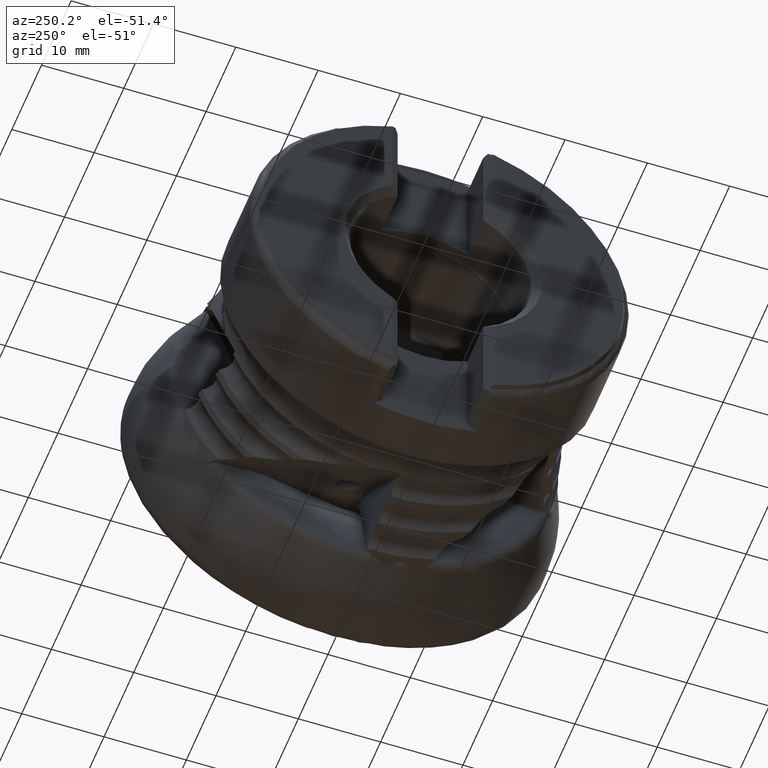
[diagram: clean part render]
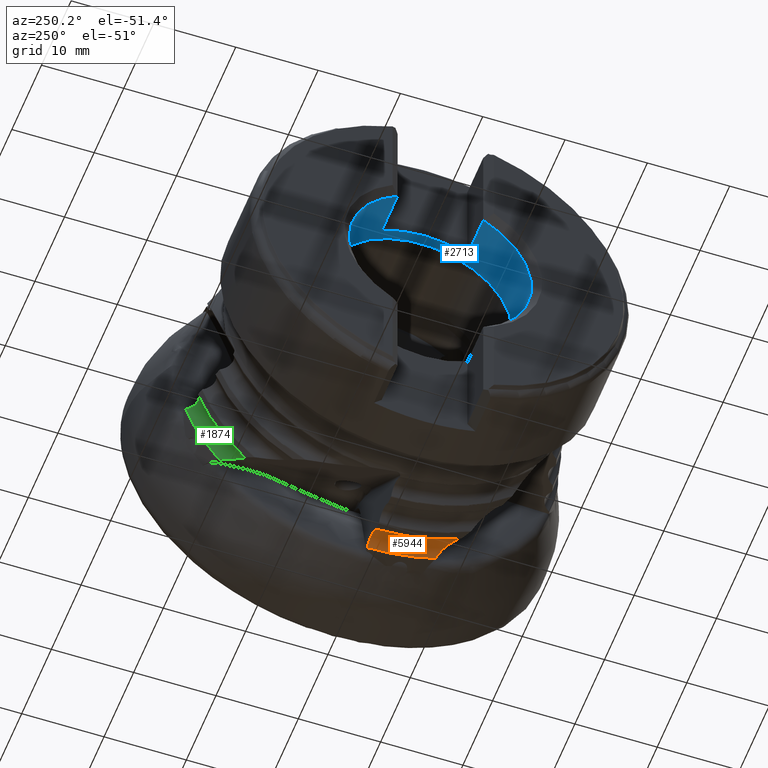
[diagram: same view with three faces highlighted in distinct colors, each labeled with its STEP entity id]
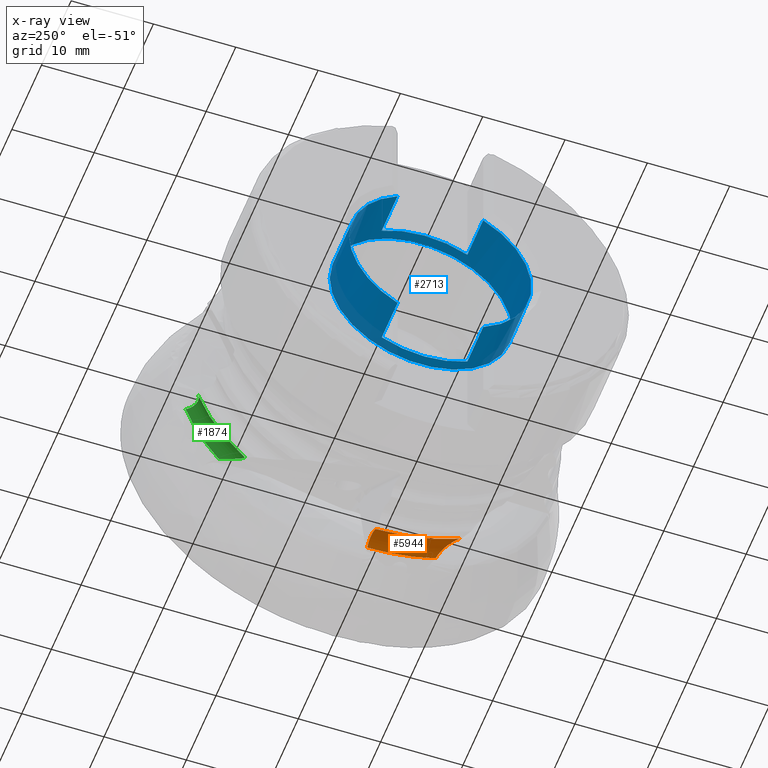
[diagram: x-ray of the same camera — body ghosted, the three highlighted faces saturated]
A machine part, auxiliary view with three faces highlighted in distinct colors.
The next image is the same camera in x-ray (body ghosted, the three faces saturated) — at least one of them is partly hidden behind the body in this view.
Their STEP definitions:

[orange] entity #5944 — the highlighted toroidal blend (fillet) surface has major radius 23.6864 mm and minor (blend) radius 1.5 mm.
#90 = CARTESIAN_POINT ( 'NONE',  ( -14.88469170939413800, -9.933350203668451800, -19.85538768310722800 ) ) ;
#259 = EDGE_CURVE ( 'NONE', #7449, #995, #10432, .T. ) ;
#612 = EDGE_LOOP ( 'NONE', ( #6587, #9050, #5675, #4384, #12652 ) ) ;
#614 = CARTESIAN_POINT ( 'NONE',  ( -13.78147778570779500, -0.08154593511307355000, -22.42667413880943900 ) ) ;
#676 = VERTEX_POINT ( 'NONE', #12670 ) ;
#915 = DIRECTION ( 'NONE',  ( 1.000000000000000000, -0.0000000000000000000, -0.0000000000000000000 ) ) ;
#995 = VERTEX_POINT ( 'NONE', #11665 ) ;
#1133 = CARTESIAN_POINT ( 'NONE',  ( -15.24039740418544000, -10.24172280577937700, -19.83586914992195500 ) ) ;
#1351 = CARTESIAN_POINT ( 'NONE',  ( -13.51307249743097200, -8.664374458453057300, -20.92385095008895500 ) ) ;
#1650 = CARTESIAN_POINT ( 'NONE',  ( -13.41097688014077400, -0.05563798796459137900, -22.74632232712764300 ) ) ;
#1803 = EDGE_CURVE ( 'NONE', #2507, #676, #10298, .T. ) ;
#2160 = VERTEX_POINT ( 'NONE', #7013 ) ;
#2174 = CARTESIAN_POINT ( 'NONE',  ( -15.51131119843471700, -10.45827192814917000, -19.90559551377851100 ) ) ;
#2395 = CARTESIAN_POINT ( 'NONE',  ( -13.86612882969662900, -8.985439915786688700, -20.48961213556946600 ) ) ;
#2507 = VERTEX_POINT ( 'NONE', #6790 ) ;
#2656 = CARTESIAN_POINT ( 'NONE',  ( -15.40434619505159700, -0.1950279491822991000, -22.41049312331525200 ) ) ;
#2714 = CARTESIAN_POINT ( 'NONE',  ( -13.18990953633444400, -0.04017945338739426600, -23.18883366109630700 ) ) ;
#2951 = CARTESIAN_POINT ( 'NONE',  ( -13.18990953633444400, -0.04017945338739426600, -23.18883366109630700 ) ) ;
#3159 = DIRECTION ( 'NONE',  ( 1.000000000000000000, -0.0000000000000000000, -0.0000000000000000000 ) ) ;
#3427 = CARTESIAN_POINT ( 'NONE',  ( -13.18990953633467800, -8.323900030351369500, -21.64338950430738600 ) ) ;
#3479 = CARTESIAN_POINT ( 'NONE',  ( -14.27372761121889300, -9.355758849266262400, -20.15095123701895800 ) ) ;
#3608 = EDGE_CURVE ( 'NONE', #2160, #7449, #11939, .T. ) ;
#3753 = CARTESIAN_POINT ( 'NONE',  ( -15.07131665386254400, -0.1717402550839444400, -22.25493915660329600 ) ) ;
#4384 = ORIENTED_EDGE ( 'NONE', *, *, #3608, .T. ) ;
#4488 = CARTESIAN_POINT ( 'NONE',  ( -13.24534631918984400, -8.396501643351065500, -21.44655030831243500 ) ) ;
#4541 = CARTESIAN_POINT ( 'NONE',  ( -14.56182803034311000, -9.628355286701559400, -19.98900914385499700 ) ) ;
#4792 = CARTESIAN_POINT ( 'NONE',  ( -14.71191873162256600, -0.1466087041625865600, -22.18478892596700900 ) ) ;
#5675 = ORIENTED_EDGE ( 'NONE', *, *, #6962, .T. ) ;
#5847 = CARTESIAN_POINT ( 'NONE',  ( -14.34697165649062000, -0.1210891186705060200, -22.20339248542989800 ) ) ;
#5944 = ADVANCED_FACE ( 'NONE', ( #12919 ), #13273, .F. ) ;
#6289 = CARTESIAN_POINT ( 'NONE',  ( -14.60497898970496100, 0.0000000000000000000, 0.0000000000000000000 ) ) ;
#6587 = ORIENTED_EDGE ( 'NONE', *, *, #12567, .T. ) ;
#6790 = CARTESIAN_POINT ( 'NONE',  ( -14.56182803034311000, -9.628355286701559400, -19.98900914385499700 ) ) ;
#6922 = CARTESIAN_POINT ( 'NONE',  ( -13.99519951306806000, -0.09649081415043492300, -22.31038281436774200 ) ) ;
#6962 = EDGE_CURVE ( 'NONE', #676, #2160, #11984, .T. ) ;
#7013 = CARTESIAN_POINT ( 'NONE',  ( -15.59741707130248600, -0.2085287800376602300, -22.56072550622018700 ) ) ;
#7150 = AXIS2_PLACEMENT_3D ( 'NONE', #6289, #3159, #10653 ) ;
#7251 = CARTESIAN_POINT ( 'NONE',  ( -15.59741707130249100, 0.0000000000000000000, 0.0000000000000000000 ) ) ;
#7261 = B_SPLINE_CURVE_WITH_KNOTS ( 'NONE', 3,
 ( #3427, #4488, #7716, #1351, #8820, #2395, #9914, #3479, #10954, #4541 ),
 .UNSPECIFIED., .F., .F.,
 ( 4, 2, 2, 2, 4 ),
 ( 7.752230967857882700E-007, 0.0006450914432543967100, 0.001289407663412007600, 0.001933723883569618600, 0.002578040103727229700 ),
 .UNSPECIFIED. ) ;
#7449 = VERTEX_POINT ( 'NONE', #2951 ) ;
#7479 = CARTESIAN_POINT ( 'NONE',  ( -15.15047835104717900, -10.16552589400645200, -19.83268900366148200 ) ) ;
#7716 = CARTESIAN_POINT ( 'NONE',  ( -13.32326727438856100, -8.479067684438554400, -21.26421689623993000 ) ) ;
#8042 = CARTESIAN_POINT ( 'NONE',  ( -13.68011743834944100, -0.07445812916481801800, -22.49910903494398400 ) ) ;
#8349 = DIRECTION ( 'NONE',  ( 0.0000000000000000000, 0.0000000000000000000, -1.000000000000000000 ) ) ;
#8590 = CARTESIAN_POINT ( 'NONE',  ( -15.42051139532144600, -10.38788773409242200, -19.87208912387053400 ) ) ;
#8693 = DIRECTION ( 'NONE',  ( 0.0000000000000000000, 0.0000000000000000000, 1.000000000000000000 ) ) ;
#8707 = DIRECTION ( 'NONE',  ( -1.000000000000000000, 0.0000000000000000000, 0.0000000000000000000 ) ) ;
#8727 = CARTESIAN_POINT ( 'NONE',  ( -13.18990953633434600, 0.0000000000000000000, 0.0000000000000000000 ) ) ;
#8820 = CARTESIAN_POINT ( 'NONE',  ( -13.62420163658456400, -8.766251063148647700, -20.76815903889483300 ) ) ;
#9050 = ORIENTED_EDGE ( 'NONE', *, *, #1803, .T. ) ;
#9139 = CARTESIAN_POINT ( 'NONE',  ( -13.27185459420402900, -0.04590961003874145800, -22.95577606446703500 ) ) ;
#9642 = CARTESIAN_POINT ( 'NONE',  ( -14.56182803034311000, -9.628355286701559400, -19.98900914385499700 ) ) ;
#9684 = CARTESIAN_POINT ( 'NONE',  ( -15.59741707130238300, -10.52039145622314500, -19.95873701482490500 ) ) ;
#9914 = CARTESIAN_POINT ( 'NONE',  ( -13.99896747420032700, -9.104607525114431600, -20.36468677158382700 ) ) ;
#10170 = CARTESIAN_POINT ( 'NONE',  ( -15.18789958199940700, -0.1798925275755927400, -22.29824666243977300 ) ) ;
#10254 = AXIS2_PLACEMENT_3D ( 'NONE', #7251, #915, #8349 ) ;
#10298 = B_SPLINE_CURVE_WITH_KNOTS ( 'NONE', 3,
 ( #9642, #11741, #90, #7479, #1133, #8590, #2174, #9684 ),
 .UNSPECIFIED., .F., .F.,
 ( 4, 2, 2, 4 ),
 ( 0.0002198754610765449400, 0.0009148930533316950300, 0.001262401849459273800, 0.001609910645586852600 ),
 .UNSPECIFIED. ) ;
#10432 = CIRCLE ( 'NONE', #13711, 23.18886847067933100 ) ;
#10653 = DIRECTION ( 'NONE',  ( 0.0000000000000000000, 0.0000000000000000000, -1.000000000000000000 ) ) ;
#10954 = CARTESIAN_POINT ( 'NONE',  ( -14.41596967887515200, -9.487992046374721200, -20.06127893597356100 ) ) ;
#11163 = CARTESIAN_POINT ( 'NONE',  ( -15.59741707130248600, -0.2085287800376602300, -22.56072550622018700 ) ) ;
#11218 = CARTESIAN_POINT ( 'NONE',  ( -14.83484163637456300, -0.1552043110067277400, -22.19864102937895100 ) ) ;
#11665 = CARTESIAN_POINT ( 'NONE',  ( -13.18990953633467800, -8.323900030351369500, -21.64338950430738600 ) ) ;
#11741 = CARTESIAN_POINT ( 'NONE',  ( -14.71976943149983800, -9.780346356290605700, -19.91075245088093500 ) ) ;
#11939 = B_SPLINE_CURVE_WITH_KNOTS ( 'NONE', 3,
 ( #11163, #13248, #2656, #10170, #3753, #11218, #4792, #12253, #5847, #13302, #6922, #614, #8042, #1650, #9139, #2714 ),
 .UNSPECIFIED., .F., .F.,
 ( 4, 2, 2, 2, 2, 2, 2, 4 ),
 ( 2.632379143124934000E-007, 0.0003656586918760220700, 0.0007310541458377316200, 0.001096449599799441200, 0.001461845053761150700, 0.001827240507722860400, 0.002192635961684569700, 0.002923426869607981800 ),
 .UNSPECIFIED. ) ;
#11984 = CIRCLE ( 'NONE', #10254, 22.56168920136783000 ) ;
#12253 = CARTESIAN_POINT ( 'NONE',  ( -14.46742850569045700, -0.1295122821118094000, -22.18739016820024200 ) ) ;
#12567 = EDGE_CURVE ( 'NONE', #995, #2507, #7261, .T. ) ;
#12652 = ORIENTED_EDGE ( 'NONE', *, *, #259, .T. ) ;
#12670 = CARTESIAN_POINT ( 'NONE',  ( -15.59741707130238300, -10.52039145622314500, -19.95873701482490500 ) ) ;
#12919 = FACE_OUTER_BOUND ( 'NONE', #612, .T. ) ;
#13248 = CARTESIAN_POINT ( 'NONE',  ( -15.50487252458771800, -0.2020574349231411000, -22.47912405651713600 ) ) ;
#13273 = TOROIDAL_SURFACE ( 'NONE', #7150, 23.68644102030170000, 1.500000000000000900 ) ;
#13302 = CARTESIAN_POINT ( 'NONE',  ( -14.10966359407240500, -0.1044949224171112800, -22.26503981885514000 ) ) ;
#13711 = AXIS2_PLACEMENT_3D ( 'NONE', #8727, #8707, #8693 ) ;

[blue] entity #2713 — the highlighted cylindrical surface (bore or boss wall) has radius 11.075 mm, axis along (1, 0, -0).
#70 = CARTESIAN_POINT ( 'NONE',  ( -37.95525917703945900, 2.876576861204161800E-018, 0.0000000000000000000 ) ) ;
#77 = DIRECTION ( 'NONE',  ( 1.000000000000000000, 1.185534072280014000E-018, -0.0000000000000000000 ) ) ;
#313 = DIRECTION ( 'NONE',  ( -1.000000000000000000, -0.0000000000000000000, -0.0000000000000000000 ) ) ;
#489 = EDGE_CURVE ( 'NONE', #12497, #13547, #9755, .T. ) ;
#592 = VECTOR ( 'NONE', #9345, 1000.000000000000000 ) ;
#611 = DIRECTION ( 'NONE',  ( 0.0000000000000000000, 1.000000000000000000, 0.0000000000000000000 ) ) ;
#1048 = VECTOR ( 'NONE', #3740, 1000.000000000000000 ) ;
#1117 = DIRECTION ( 'NONE',  ( 0.0000000000000000000, 1.000000000000000000, 0.0000000000000000000 ) ) ;
#1333 = ORIENTED_EDGE ( 'NONE', *, *, #4212, .F. ) ;
#2088 = EDGE_CURVE ( 'NONE', #7447, #3264, #12017, .T. ) ;
#2156 = CARTESIAN_POINT ( 'NONE',  ( 0.3947408229605479100, 4.834180853314269900E-017, 0.0000000000000000000 ) ) ;
#2297 = CARTESIAN_POINT ( 'NONE',  ( -32.60525917703945700, 9.219184147902238000E-018, 0.0000000000000000000 ) ) ;
#2328 = FACE_OUTER_BOUND ( 'NONE', #2648, .T. ) ;
#2490 = CARTESIAN_POINT ( 'NONE',  ( -32.60525917703945700, -5.200000000000002000, 9.778324242936523800 ) ) ;
#2648 = EDGE_LOOP ( 'NONE', ( #13313, #6114, #9832, #9621, #1333, #3139, #10260, #8960 ) ) ;
#2713 = ADVANCED_FACE ( 'NONE', ( #2328, #13316 ), #7666, .F. ) ;
#2742 = CIRCLE ( 'NONE', #13687, 11.07499999999999800 ) ;
#3090 = CIRCLE ( 'NONE', #5923, 11.07499999999999800 ) ;
#3139 = ORIENTED_EDGE ( 'NONE', *, *, #9418, .T. ) ;
#3150 = AXIS2_PLACEMENT_3D ( 'NONE', #6606, #313, #7721 ) ;
#3264 = VERTEX_POINT ( 'NONE', #5247 ) ;
#3385 = DIRECTION ( 'NONE',  ( 0.0000000000000000000, 0.0000000000000000000, -1.000000000000000000 ) ) ;
#3626 = AXIS2_PLACEMENT_3D ( 'NONE', #70, #7462, #1117 ) ;
#3666 = ORIENTED_EDGE ( 'NONE', *, *, #11504, .T. ) ;
#3740 = DIRECTION ( 'NONE',  ( 1.000000000000000000, 1.185534072280014000E-018, -0.0000000000000000000 ) ) ;
#3971 = VERTEX_POINT ( 'NONE', #8980 ) ;
#4058 = VERTEX_POINT ( 'NONE', #11926 ) ;
#4212 = EDGE_CURVE ( 'NONE', #4058, #13175, #4644, .T. ) ;
#4370 = CARTESIAN_POINT ( 'NONE',  ( 0.3947408229605504100, -5.199999999999986000, 9.778324242936523800 ) ) ;
#4539 = EDGE_CURVE ( 'NONE', #8918, #12497, #11176, .T. ) ;
#4644 = CIRCLE ( 'NONE', #11585, 11.07499999999999800 ) ;
#4723 = CARTESIAN_POINT ( 'NONE',  ( 0.3947408229605504100, -5.199999999999986000, -9.778324242936523800 ) ) ;
#4944 = EDGE_CURVE ( 'NONE', #7447, #13547, #9529, .T. ) ;
#4953 = DIRECTION ( 'NONE',  ( 1.000000000000000000, 1.185534072280014000E-018, -0.0000000000000000000 ) ) ;
#5214 = EDGE_LOOP ( 'NONE', ( #3666 ) ) ;
#5222 = VECTOR ( 'NONE', #11134, 1000.000000000000000 ) ;
#5247 = CARTESIAN_POINT ( 'NONE',  ( -32.60525917703945700, 5.199999999999994000, -9.778324242936518500 ) ) ;
#5923 = AXIS2_PLACEMENT_3D ( 'NONE', #11377, #4953, #12412 ) ;
#6114 = ORIENTED_EDGE ( 'NONE', *, *, #2088, .T. ) ;
#6569 = LINE ( 'NONE', #4370, #9501 ) ;
#6584 = VERTEX_POINT ( 'NONE', #6605 ) ;
#6605 = CARTESIAN_POINT ( 'NONE',  ( -32.60525917703945700, -5.200000000000002000, -9.778324242936523800 ) ) ;
#6606 = CARTESIAN_POINT ( 'NONE',  ( -32.60525917703945700, 9.219184147902238000E-018, 0.0000000000000000000 ) ) ;
#6919 = DIRECTION ( 'NONE',  ( 1.000000000000000000, 1.185534072280014000E-018, -0.0000000000000000000 ) ) ;
#7447 = VERTEX_POINT ( 'NONE', #11456 ) ;
#7462 = DIRECTION ( 'NONE',  ( 1.000000000000000000, 1.185534072280014000E-018, -0.0000000000000000000 ) ) ;
#7541 = CARTESIAN_POINT ( 'NONE',  ( -37.95525917703945900, 5.199999999999996600, 9.778324242936516700 ) ) ;
#7568 = CARTESIAN_POINT ( 'NONE',  ( -32.60525917703945700, 5.199999999999994000, 9.778324242936518500 ) ) ;
#7666 = CYLINDRICAL_SURFACE ( 'NONE', #11209, 11.07499999999999800 ) ;
#7721 = DIRECTION ( 'NONE',  ( 0.0000000000000000000, 1.776356839400250500E-015, -1.000000000000000000 ) ) ;
#8620 = DIRECTION ( 'NONE',  ( 0.0000000000000000000, 1.000000000000000000, 0.0000000000000000000 ) ) ;
#8754 = CARTESIAN_POINT ( 'NONE',  ( -37.95525917703945900, -5.200000000000004600, -9.778324242936513100 ) ) ;
#8918 = VERTEX_POINT ( 'NONE', #2490 ) ;
#8960 = ORIENTED_EDGE ( 'NONE', *, *, #489, .T. ) ;
#8980 = CARTESIAN_POINT ( 'NONE',  ( -31.35525917703945700, 11.07499999999999800, 0.0000000000000000000 ) ) ;
#9076 = CARTESIAN_POINT ( 'NONE',  ( 0.3947408229605504100, 5.199999999999977100, -9.778324242936527400 ) ) ;
#9318 = CARTESIAN_POINT ( 'NONE',  ( 0.3947408229605504100, 5.199999999999977100, 9.778324242936527400 ) ) ;
#9345 = DIRECTION ( 'NONE',  ( -1.000000000000000000, -1.185534072280014000E-018, 0.0000000000000000000 ) ) ;
#9418 = EDGE_CURVE ( 'Kante3', #4058, #8918, #6569, .T. ) ;
#9501 = VECTOR ( 'NONE', #10788, 1000.000000000000000 ) ;
#9529 = CIRCLE ( 'NONE', #3626, 11.07499999999999800 ) ;
#9621 = ORIENTED_EDGE ( 'NONE', *, *, #12711, .T. ) ;
#9755 = LINE ( 'NONE', #9318, #592 ) ;
#9812 = DIRECTION ( 'NONE',  ( -1.000000000000000000, -0.0000000000000000000, -0.0000000000000000000 ) ) ;
#9832 = ORIENTED_EDGE ( 'NONE', *, *, #12551, .T. ) ;
#10260 = ORIENTED_EDGE ( 'NONE', *, *, #4539, .T. ) ;
#10788 = DIRECTION ( 'NONE',  ( 1.000000000000000000, 1.185534072280014000E-018, -0.0000000000000000000 ) ) ;
#11134 = DIRECTION ( 'NONE',  ( -1.000000000000000000, -1.185534072280014000E-018, 0.0000000000000000000 ) ) ;
#11176 = CIRCLE ( 'NONE', #3150, 11.07499999999999800 ) ;
#11209 = AXIS2_PLACEMENT_3D ( 'NONE', #2156, #77, #8620 ) ;
#11377 = CARTESIAN_POINT ( 'NONE',  ( -31.35525917703945700, 1.070110173825225800E-017, 0.0000000000000000000 ) ) ;
#11456 = CARTESIAN_POINT ( 'NONE',  ( -37.95525917703945900, 5.199999999999996600, -9.778324242936518500 ) ) ;
#11504 = EDGE_CURVE ( 'NONE', #3971, #3971, #3090, .T. ) ;
#11585 = AXIS2_PLACEMENT_3D ( 'NONE', #13297, #6919, #611 ) ;
#11926 = CARTESIAN_POINT ( 'NONE',  ( -37.95525917703945900, -5.200000000000004600, 9.778324242936511400 ) ) ;
#12017 = LINE ( 'NONE', #9076, #1048 ) ;
#12412 = DIRECTION ( 'NONE',  ( 0.0000000000000000000, 1.000000000000000000, 0.0000000000000000000 ) ) ;
#12497 = VERTEX_POINT ( 'NONE', #7568 ) ;
#12551 = EDGE_CURVE ( 'NONE', #3264, #6584, #2742, .T. ) ;
#12711 = EDGE_CURVE ( 'NONE', #6584, #13175, #13381, .T. ) ;
#13175 = VERTEX_POINT ( 'NONE', #8754 ) ;
#13297 = CARTESIAN_POINT ( 'NONE',  ( -37.95525917703945900, 2.876576861204161800E-018, 0.0000000000000000000 ) ) ;
#13313 = ORIENTED_EDGE ( 'NONE', *, *, #4944, .F. ) ;
#13316 = FACE_OUTER_BOUND ( 'NONE', #5214, .T. ) ;
#13381 = LINE ( 'NONE', #4723, #5222 ) ;
#13547 = VERTEX_POINT ( 'NONE', #7541 ) ;
#13687 = AXIS2_PLACEMENT_3D ( 'NONE', #2297, #9812, #3385 ) ;

[green] entity #1874 — the highlighted toroidal blend (fillet) surface has major radius 23.6864 mm and minor (blend) radius 1.5 mm.
#222 = EDGE_CURVE ( 'NONE', #6253, #12441, #5037, .T. ) ;
#364 = CARTESIAN_POINT ( 'NONE',  ( -13.18990953633468000, 18.01186005392900200, -14.60467453756239200 ) ) ;
#414 = CARTESIAN_POINT ( 'NONE',  ( -13.51307249743097200, 17.22232583878045600, -14.70613531967889800 ) ) ;
#764 = CARTESIAN_POINT ( 'NONE',  ( -13.41097358463006000, 21.61584892116394800, -7.081916065554901600 ) ) ;
#1226 = DIRECTION ( 'NONE',  ( 1.000000000000000000, -0.0000000000000000000, -0.0000000000000000000 ) ) ;
#1427 = CIRCLE ( 'NONE', #8567, 23.18886847067933100 ) ;
#1443 = CARTESIAN_POINT ( 'NONE',  ( -13.86612882969663700, 16.71012550198055600, -14.87729954172957900 ) ) ;
#1750 = CARTESIAN_POINT ( 'NONE',  ( -15.40434576522243200, 21.25337829673901200, -7.110705709732238600 ) ) ;
#1783 = CARTESIAN_POINT ( 'NONE',  ( -13.18990953633444500, 22.04147522474856300, -7.203956611978097300 ) ) ;
#1851 = CARTESIAN_POINT ( 'NONE',  ( -14.56182803034311300, 16.03535198907609800, -15.33405356278977500 ) ) ;
#1874 = ADVANCED_FACE ( 'NONE', ( #10250 ), #11227, .F. ) ;
#2501 = CARTESIAN_POINT ( 'NONE',  ( -14.27372761121889700, 16.27360500381572800, -15.12484180354040600 ) ) ;
#2531 = CARTESIAN_POINT ( 'NONE',  ( -13.18990953633434600, 0.0000000000000000000, 0.0000000000000000000 ) ) ;
#2703 = ORIENTED_EDGE ( 'NONE', *, *, #4804, .T. ) ;
#2813 = CARTESIAN_POINT ( 'NONE',  ( -15.07131541548857700, 21.11263386991044300, -7.040488883238005300 ) ) ;
#3487 = EDGE_LOOP ( 'NONE', ( #5867, #7381, #11983, #11302, #2703 ) ) ;
#3545 = CARTESIAN_POINT ( 'NONE',  ( -13.24534631918984000, 17.80221972167977300, -14.61289611797774600 ) ) ;
#3592 = CARTESIAN_POINT ( 'NONE',  ( -14.56182803034311300, 16.03535198907609800, -15.33405356278977500 ) ) ;
#3619 = DIRECTION ( 'NONE',  ( 0.0000000000000000000, 0.0000000000000000000, 1.000000000000000000 ) ) ;
#3909 = CARTESIAN_POINT ( 'NONE',  ( -14.71191661509525500, 21.05368337422413200, -6.994909765089924600 ) ) ;
#3996 = VERTEX_POINT ( 'NONE', #11890 ) ;
#4053 = B_SPLINE_CURVE_WITH_KNOTS ( 'NONE', 3,
 ( #5900, #12348, #1750, #9243, #2813, #10315, #3909, #11360, #4936, #12393, #5996, #13452, #7085, #764, #8188, #1783 ),
 .UNSPECIFIED., .F., .F.,
 ( 4, 2, 2, 2, 2, 2, 2, 4 ),
 ( 2.632379168036092000E-007, 0.0003656594739672007200, 0.0007310557100175977600, 0.001096451946067994800, 0.001461848182118391900, 0.001827244418168789100, 0.002192640654219186200, 0.002923433126319976600 ),
 .UNSPECIFIED. ) ;
#4093 = CARTESIAN_POINT ( 'NONE',  ( -14.88795240253344700, 15.81247938718633300, -15.58541230291777600 ) ) ;
#4352 = VERTEX_POINT ( 'NONE', #13658 ) ;
#4617 = EDGE_CURVE ( 'NONE', #4352, #3996, #13195, .T. ) ;
#4804 = EDGE_CURVE ( 'NONE', #3996, #6253, #7242, .T. ) ;
#4936 = CARTESIAN_POINT ( 'NONE',  ( -14.34696883153345600, 21.07926301788454600, -6.976388162927078100 ) ) ;
#5037 = CIRCLE ( 'NONE', #12991, 22.56168920136783000 ) ;
#5050 = CARTESIAN_POINT ( 'NONE',  ( -14.72040853866441500, 15.91346640758697500, -15.45491008479500300 ) ) ;
#5131 = CARTESIAN_POINT ( 'NONE',  ( -15.24149105731761500, 15.69994077382905600, -15.87097367449240300 ) ) ;
#5867 = ORIENTED_EDGE ( 'NONE', *, *, #222, .T. ) ;
#5900 = CARTESIAN_POINT ( 'NONE',  ( -15.59741707130248600, 21.39208606818899500, -7.169970241940514900 ) ) ;
#5996 = CARTESIAN_POINT ( 'NONE',  ( -13.99519617090306100, 21.18861911425458900, -6.986055886529777000 ) ) ;
#6200 = CARTESIAN_POINT ( 'NONE',  ( -15.51154816109896100, 15.69964882656160100, -16.09778274097898200 ) ) ;
#6253 = VERTEX_POINT ( 'NONE', #10154 ) ;
#6372 = CARTESIAN_POINT ( 'NONE',  ( -15.59741707130248600, 21.39208606818899500, -7.169970241940514900 ) ) ;
#6675 = AXIS2_PLACEMENT_3D ( 'NONE', #8680, #1226, #9777 ) ;
#6710 = CARTESIAN_POINT ( 'NONE',  ( -13.32326727438856100, 17.60329603213558900, -14.63507696640592400 ) ) ;
#6932 = CARTESIAN_POINT ( 'NONE',  ( -13.18990953633444500, 22.04147522474856300, -7.203956611978097300 ) ) ;
#7085 = CARTESIAN_POINT ( 'NONE',  ( -13.68011390152145200, 21.37491810538617200, -7.023421547863155600 ) ) ;
#7242 = B_SPLINE_CURVE_WITH_KNOTS ( 'NONE', 3,
 ( #1851, #5050, #4093, #11577, #5131, #12579, #6200, #13647 ),
 .UNSPECIFIED., .F., .F.,
 ( 4, 2, 2, 4 ),
 ( 0.0001395349654626981500, 0.0008379229989497183600, 0.001187117015693226800, 0.001536311032436735000 ),
 .UNSPECIFIED. ) ;
#7328 = VERTEX_POINT ( 'NONE', #6932 ) ;
#7381 = ORIENTED_EDGE ( 'NONE', *, *, #9322, .T. ) ;
#7781 = DIRECTION ( 'NONE',  ( 0.0000000000000000000, 0.0000000000000000000, -1.000000000000000000 ) ) ;
#7821 = CARTESIAN_POINT ( 'NONE',  ( -13.62420163658456900, 17.04277242992468500, -14.75491428198696700 ) ) ;
#8188 = CARTESIAN_POINT ( 'NONE',  ( -13.27185217578926000, 21.81806015679691800, -7.137389521408336700 ) ) ;
#8567 = AXIS2_PLACEMENT_3D ( 'NONE', #2531, #10040, #3619 ) ;
#8680 = CARTESIAN_POINT ( 'NONE',  ( -14.60497898970496100, 0.0000000000000000000, 0.0000000000000000000 ) ) ;
#8822 = DIRECTION ( 'NONE',  ( 1.000000000000000000, -0.0000000000000000000, -0.0000000000000000000 ) ) ;
#8931 = CARTESIAN_POINT ( 'NONE',  ( -13.99896747420033600, 16.55448960405016500, -14.95203061261200800 ) ) ;
#9243 = CARTESIAN_POINT ( 'NONE',  ( -15.18789862198806000, 21.15130255754568400, -7.061624928511561100 ) ) ;
#9276 = CARTESIAN_POINT ( 'NONE',  ( -15.59741707130249100, 0.0000000000000000000, 0.0000000000000000000 ) ) ;
#9322 = EDGE_CURVE ( 'NONE', #12441, #7328, #4053, .T. ) ;
#9777 = DIRECTION ( 'NONE',  ( 0.0000000000000000000, 0.0000000000000000000, -1.000000000000000000 ) ) ;
#10011 = CARTESIAN_POINT ( 'NONE',  ( -14.41596967887515200, 16.14745927244828000, -15.22289278237321100 ) ) ;
#10040 = DIRECTION ( 'NONE',  ( -1.000000000000000000, 0.0000000000000000000, 0.0000000000000000000 ) ) ;
#10154 = CARTESIAN_POINT ( 'NONE',  ( -15.59741707130238500, 15.73090714752059900, -16.17307577225804100 ) ) ;
#10250 = FACE_OUTER_BOUND ( 'NONE', #3487, .T. ) ;
#10315 = CARTESIAN_POINT ( 'NONE',  ( -14.83483983785601800, 21.06420118948732100, -7.007365189703014300 ) ) ;
#11227 = TOROIDAL_SURFACE ( 'NONE', #6675, 23.68644102030170000, 1.500000000000000900 ) ;
#11302 = ORIENTED_EDGE ( 'NONE', *, *, #4617, .T. ) ;
#11360 = CARTESIAN_POINT ( 'NONE',  ( -14.46742591247887300, 21.06144076766749500, -6.979454018006672200 ) ) ;
#11577 = CARTESIAN_POINT ( 'NONE',  ( -15.15242191713493900, 15.72020810306259300, -15.79821152432978700 ) ) ;
#11857 = EDGE_CURVE ( 'NONE', #7328, #4352, #1427, .T. ) ;
#11890 = CARTESIAN_POINT ( 'NONE',  ( -14.56182803034311300, 16.03535198907609800, -15.33405356278977500 ) ) ;
#11983 = ORIENTED_EDGE ( 'NONE', *, *, #11857, .T. ) ;
#12348 = CARTESIAN_POINT ( 'NONE',  ( -15.50487232650634400, 21.31647807149641200, -7.138599325130443600 ) ) ;
#12393 = CARTESIAN_POINT ( 'NONE',  ( -14.10966032384944000, 21.14302162978921400, -6.979656388498992400 ) ) ;
#12441 = VERTEX_POINT ( 'NONE', #6372 ) ;
#12579 = CARTESIAN_POINT ( 'NONE',  ( -15.42224805960968200, 15.68950551912909400, -16.02174633885144700 ) ) ;
#12991 = AXIS2_PLACEMENT_3D ( 'NONE', #9276, #8822, #7781 ) ;
#13195 = B_SPLINE_CURVE_WITH_KNOTS ( 'NONE', 3,
 ( #364, #3545, #6710, #414, #7821, #1443, #8931, #2501, #10011, #3592 ),
 .UNSPECIFIED., .F., .F.,
 ( 4, 2, 2, 2, 4 ),
 ( 7.752230971648133800E-007, 0.0006450914432547785700, 0.001289407663412392300, 0.001933723883570006000, 0.002578040103727619600 ),
 .UNSPECIFIED. ) ;
#13452 = CARTESIAN_POINT ( 'NONE',  ( -13.78147426616039100, 21.30383773896105400, -7.007778698274069700 ) ) ;
#13647 = CARTESIAN_POINT ( 'NONE',  ( -15.59741707130238500, 15.73090714752059900, -16.17307577225804100 ) ) ;
#13658 = CARTESIAN_POINT ( 'NONE',  ( -13.18990953633468000, 18.01186005392900200, -14.60467453756239200 ) ) ;